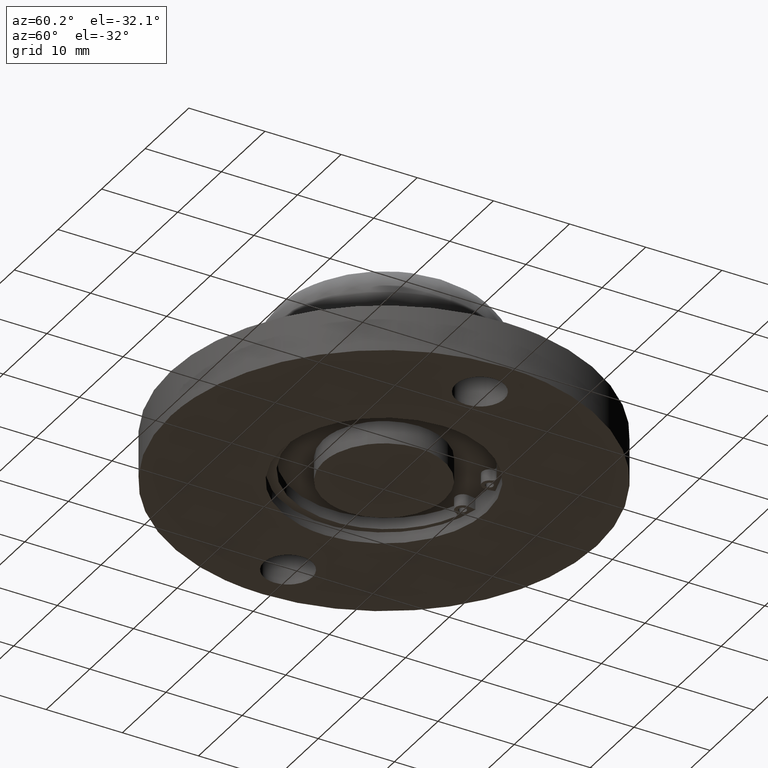
[diagram: clean part render]
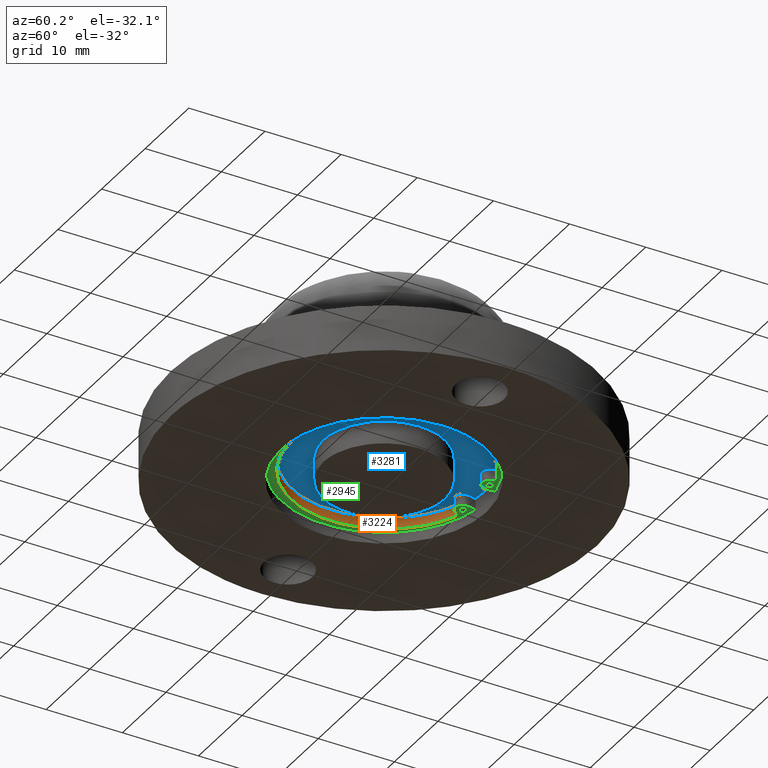
[diagram: same view with three faces highlighted in distinct colors, each labeled with its STEP entity id]
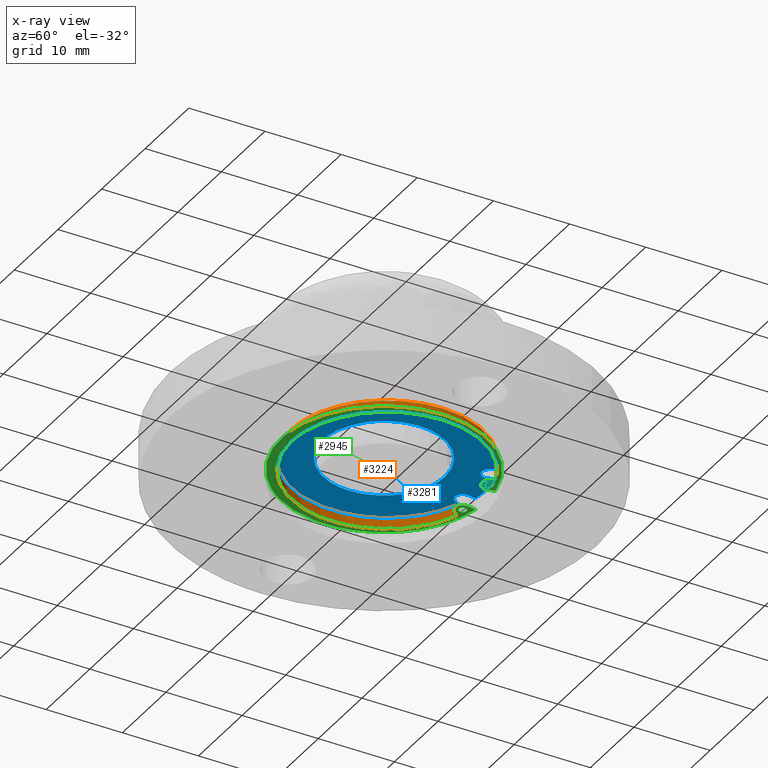
[diagram: x-ray of the same camera — body ghosted, the three highlighted faces saturated]
A machine part, auxiliary view with three faces highlighted in distinct colors.
The next image is the same camera in x-ray (body ghosted, the three faces saturated) — at least one of them is partly hidden behind the body in this view.
Their STEP definitions:

[orange] entity #3224 — the highlighted face is a freeform B-spline surface patch.
#2786=CARTESIAN_POINT('',(4.689849709970910,12.094670140618980,1.500000000000055));
#2787=VERTEX_POINT('',#2786);
#2865=CARTESIAN_POINT('',(-4.689849709971110,12.094670140618961,1.500000000000055));
#2866=VERTEX_POINT('',#2865);
#2877=CARTESIAN_POINT('',(-0.000001174504180,-12.199999999999941,1.500000000000055));
#2878=VERTEX_POINT('',#2877);
#2879=CARTESIAN_POINT('',(-0.000001174504180,-12.199999999999941,1.500000000000055));
#2880=CARTESIAN_POINT('',(-0.769831130901664,-12.200066382789370,1.500000000000054));
#2881=CARTESIAN_POINT('',(-2.309477224875312,-12.058481585410361,1.500000000000057));
#2882=CARTESIAN_POINT('',(-4.410304056692526,-11.465900723191311,1.500000000000054));
#2883=CARTESIAN_POINT('',(-6.113782433442365,-10.659552248596590,1.500000000000056));
#2884=CARTESIAN_POINT('',(-7.503864138048044,-9.760384571580003,1.500000000000061));
#2885=CARTESIAN_POINT('',(-8.915003948674160,-8.582879909579118,1.500000000000031));
#2886=CARTESIAN_POINT('',(-10.106283263915550,-7.207031262737074,1.500000000000108));
#2887=CARTESIAN_POINT('',(-11.025507065604989,-5.749316700279049,1.500000000000073));
#2888=CARTESIAN_POINT('',(-11.772730226937190,-4.221615329414719,1.500000000000006));
#2889=CARTESIAN_POINT('',(-12.383708061991600,-2.291884431644021,1.500000000000130));
#2890=CARTESIAN_POINT('',(-12.632585691095301,-0.237810780772341,1.500000000000033));
#2891=CARTESIAN_POINT('',(-12.570644258138310,1.802642450746085,1.500000000000039));
#2892=CARTESIAN_POINT('',(-12.246845391076731,3.569462797211541,1.500000000000135));
#2893=CARTESIAN_POINT('',(-11.687474584980050,5.176343012699563,1.499999999999876));
#2894=CARTESIAN_POINT('',(-11.033094346997020,6.546971885324954,1.500000000000143));
#2895=CARTESIAN_POINT('',(-10.268615726245461,7.755440459006970,1.500000000000024));
#2896=CARTESIAN_POINT('',(-9.307133951655510,8.931455688946766,1.500000000000064));
#2897=CARTESIAN_POINT('',(-8.059359681540888,10.153536203458620,1.500000000000024));
#2898=CARTESIAN_POINT('',(-6.502547763648369,11.261629303339269,1.500000000000140));
#2899=CARTESIAN_POINT('',(-5.236243022470426,11.875562971045280,1.499999999999962));
#2900=CARTESIAN_POINT('',(-4.689849709971110,12.094670140618961,1.500000000000055));
#2901=B_SPLINE_CURVE_WITH_KNOTS('',3,(#2879,#2880,#2881,#2882,#2883,#2884,#2885,#2886,#2887,#2888,#2889,#2890,#2891,#2892,#2893,#2894,#2895,#2896,#2897,#2898,#2899,#2900),.UNSPECIFIED.,.F.,.U.,(4,1,1,1,1,1,1,1,1,1,1,1,1,1,1,1,1,1,1,4),(0.000000109980625,2.309482121007662,4.619008434218319,6.520980399643438,7.947451992257726,9.577705896684751,12.023082175503410,13.381639433989790,14.740185243116541,17.117637427884208,19.427100131240639,20.921490982901300,23.231009176848129,24.793333936819948,26.016026333946940,27.782138068676652,29.072753031773122,30.567156362808841,33.012528141657732,34.778603336587970),.UNSPECIFIED.);
#2902=EDGE_CURVE('',#2878,#2866,#2901,.T.);
#2904=CARTESIAN_POINT('',(4.689849709970910,12.094670140618980,1.500000000000055));
#2905=CARTESIAN_POINT('',(5.278290923089239,11.858727291612491,1.500000000000056));
#2906=CARTESIAN_POINT('',(6.419432037706250,11.297735557071629,1.500000000000054));
#2907=CARTESIAN_POINT('',(8.134384701867759,10.104829487343450,1.500000000000056));
#2908=CARTESIAN_POINT('',(9.718792766728315,8.536411349627464,1.500000000000048));
#2909=CARTESIAN_POINT('',(11.031742508072909,6.624590823637094,1.500000000000056));
#2910=CARTESIAN_POINT('',(11.994550855675680,4.490889657291374,1.500000000000054));
#2911=CARTESIAN_POINT('',(12.482526859310520,2.478499786773301,1.500000000000057));
#2912=CARTESIAN_POINT('',(12.641472289568620,0.466023805306743,1.500000000000068));
#2913=CARTESIAN_POINT('',(12.541261975286460,-1.166447457802752,1.500000000000010));
#2914=CARTESIAN_POINT('',(12.196668182128221,-2.901217757200872,1.500000000000099));
#2915=CARTESIAN_POINT('',(11.710211890209729,-4.342678557884995,1.500000000000040));
#2916=CARTESIAN_POINT('',(10.967279190061969,-5.872208575040808,1.500000000000057));
#2917=CARTESIAN_POINT('',(9.936325641803132,-7.449912847860045,1.500000000000054));
#2918=CARTESIAN_POINT('',(8.600801038226509,-8.879582135104895,1.500000000000054));
#2919=CARTESIAN_POINT('',(7.063430354417638,-10.080271800886790,1.500000000000064));
#2920=CARTESIAN_POINT('',(5.337723125405720,-11.087667865124800,1.500000000000011));
#2921=CARTESIAN_POINT('',(2.943379256253989,-11.962790442454260,1.500000000000197));
#2922=CARTESIAN_POINT('',(1.041553947468179,-12.200277149801741,1.499999999999815));
#2923=CARTESIAN_POINT('',(-0.000001174504180,-12.199999999999941,1.500000000000055));
#2924=B_SPLINE_CURVE_WITH_KNOTS('',3,(#2904,#2905,#2906,#2907,#2908,#2909,#2910,#2911,#2912,#2913,#2914,#2915,#2916,#2917,#2918,#2919,#2920,#2921,#2922,#2923),.UNSPECIFIED.,.F.,.U.,(4,1,1,1,1,1,1,1,1,1,1,1,1,1,1,1,1,4),(0.000000109810472,1.901941977466578,3.803907809107489,6.249277243776508,8.558798894987675,10.732470604110199,13.245788095567949,14.740186238610660,16.777998262361830,18.136458103494029,20.038449209581842,21.329039794259199,23.231010745853059,25.676392065644460,27.170790606726062,29.072754995384770,31.653999880602228,34.778605685604788),.UNSPECIFIED.);
#2925=EDGE_CURVE('',#2787,#2878,#2924,.T.);
#3113=CARTESIAN_POINT('',(-4.689849709971110,12.094670140618961,3.0));
#3114=VERTEX_POINT('',#3113);
#3125=CARTESIAN_POINT('',(-4.689849709971110,12.094670140618961,1.500000000000055));
#3126=CARTESIAN_POINT('',(-4.689849709971110,12.094670140618961,3.0));
#3127=QUASI_UNIFORM_CURVE('',1,(#3125,#3126),.UNSPECIFIED.,.F.,.U.);
#3128=EDGE_CURVE('',#2866,#3114,#3127,.T.);
#3135=CARTESIAN_POINT('',(4.587617180740580,12.135150983390590,1.462500000000056));
#3136=CARTESIAN_POINT('',(4.587617180740580,12.135150983390590,3.038437499999999));
#3137=CARTESIAN_POINT('',(14.434578042713314,8.285683099048542,1.462500000000055));
#3138=CARTESIAN_POINT('',(14.434578042713314,8.285683099048542,3.038437499999998));
#3139=CARTESIAN_POINT('',(12.353499034480921,-2.080133384533347,1.462500000000056));
#3140=CARTESIAN_POINT('',(12.353499034480921,-2.080133384533347,3.038437499999999));
#3141=CARTESIAN_POINT('',(10.272420026248520,-12.445949868115241,1.462500000000055));
#3142=CARTESIAN_POINT('',(10.272420026248520,-12.445949868115241,3.038437499999998));
#3143=CARTESIAN_POINT('',(-0.297291990445127,-12.196492268580849,1.462500000000056));
#3144=CARTESIAN_POINT('',(-0.297291990445127,-12.196492268580849,3.038437499999999));
#3145=CARTESIAN_POINT('',(-10.867004007138776,-11.947034669046452,1.462500000000055));
#3146=CARTESIAN_POINT('',(-10.867004007138776,-11.947034669046452,3.038437499999998));
#3147=CARTESIAN_POINT('',(-12.456747459232600,-1.494582470335931,1.462500000000056));
#3148=CARTESIAN_POINT('',(-12.456747459232600,-1.494582470335931,3.038437499999999));
#3149=CARTESIAN_POINT('',(-14.046490911326426,8.957869728374590,1.462500000000055));
#3150=CARTESIAN_POINT('',(-14.046490911326426,8.957869728374590,3.038437499999998));
#3151=CARTESIAN_POINT('',(-4.028891001460831,12.338510681753769,1.462500000000056));
#3152=CARTESIAN_POINT('',(-4.028891001460831,12.338510681753769,3.038437499999999));
#3160=(BOUNDED_SURFACE()B_SPLINE_SURFACE(1,2,((#3135,#3137,#3139,#3141,#3143,#3145,#3147,#3149,#3151),(#3136,#3138,#3140,#3142,#3144,#3146,#3148,#3150,#3152)),.UNSPECIFIED.,.F.,.F.,.U.)B_SPLINE_SURFACE_WITH_KNOTS((2,2),(3,2,2,2,3),(0.0,1.0),(0.0,18.344099807016590,36.688199614033188,55.032299421049792,73.376399228066376),.UNSPECIFIED.)GEOMETRIC_REPRESENTATION_ITEM()RATIONAL_B_SPLINE_SURFACE(((1.0,0.766044443118978,1.0,0.766044443118978,1.0,0.766044443118978,1.0,0.766044443118978,1.0),(1.0,0.766044443118978,1.0,0.766044443118978,1.0,0.766044443118978,1.0,0.766044443118978,1.0)))REPRESENTATION_ITEM('')SURFACE());
#3161=CARTESIAN_POINT('',(-0.000001174504180,-12.199999999999941,3.0));
#3162=VERTEX_POINT('',#3161);
#3163=CARTESIAN_POINT('',(-0.000001174504180,-12.199999999999941,3.0));
#3164=CARTESIAN_POINT('',(-0.769831130901664,-12.200066382789380,2.999999999999999));
#3165=CARTESIAN_POINT('',(-2.309477224875312,-12.058481585410370,3.000000000000002));
#3166=CARTESIAN_POINT('',(-4.410304056692526,-11.465900723191300,2.999999999999997));
#3167=CARTESIAN_POINT('',(-6.113782433442365,-10.659552248596590,3.000000000000002));
#3168=CARTESIAN_POINT('',(-7.503864138048044,-9.760384571580003,3.000000000000011));
#3169=CARTESIAN_POINT('',(-8.915003948674160,-8.582879909579118,2.999999999999952));
#3170=CARTESIAN_POINT('',(-10.106283263915550,-7.207031262737074,3.000000000000105));
#3171=CARTESIAN_POINT('',(-11.025507065607490,-5.749316700276279,3.000000000000034));
#3172=CARTESIAN_POINT('',(-11.772730226920970,-4.221615329432728,2.999999999999904));
#3173=CARTESIAN_POINT('',(-12.383708062051820,-2.291884431577175,3.000000000000148));
#3174=CARTESIAN_POINT('',(-12.632585690833981,-0.237810781062407,2.999999999999956));
#3175=CARTESIAN_POINT('',(-12.570644260089070,1.802642452911408,2.999999999999967));
#3176=CARTESIAN_POINT('',(-12.246845383988781,3.569462789344007,3.000000000000159));
#3177=CARTESIAN_POINT('',(-11.687474613389350,5.176343044233549,2.999999999999644));
#3178=CARTESIAN_POINT('',(-11.033094130778100,6.546971645324498,3.000000000000174));
#3179=CARTESIAN_POINT('',(-10.268616501910341,7.755441318495088,2.999999999999938));
#3180=CARTESIAN_POINT('',(-9.307140843348662,8.931465920551641,3.000000000000008));
#3181=CARTESIAN_POINT('',(-8.237569913194806,9.978896703519597,3.000000000000008));
#3182=CARTESIAN_POINT('',(-6.718014066897028,11.129915434525850,2.999999999999957));
#3183=CARTESIAN_POINT('',(-5.467452861541353,11.782939935132250,3.000000000000116));
#3184=CARTESIAN_POINT('',(-4.689849709971110,12.094670140618961,3.0));
#3185=B_SPLINE_CURVE_WITH_KNOTS('',3,(#3163,#3164,#3165,#3166,#3167,#3168,#3169,#3170,#3171,#3172,#3173,#3174,#3175,#3176,#3177,#3178,#3179,#3180,#3181,#3182,#3183,#3184),.UNSPECIFIED.,.F.,.U.,(4,1,1,1,1,1,1,1,1,1,1,1,1,1,1,1,1,1,1,4),(0.000000109980625,2.309482121007662,4.619008434218319,6.520980399643438,7.947451992257726,9.577705896684751,12.023082175503410,13.381639433989790,14.740185243116541,17.117637427884208,19.427100131240639,20.921490982901300,23.231009176848129,24.793333936819948,26.016026333946940,27.782138068676652,29.072753031773122,30.567156362808841,32.265342655914601,34.778603336587970),.UNSPECIFIED.);
#3186=EDGE_CURVE('',#3162,#3114,#3185,.T.);
#3187=ORIENTED_EDGE('',*,*,#3186,.F.);
#3188=CARTESIAN_POINT('',(4.689849709970910,12.094670140618980,3.0));
#3189=VERTEX_POINT('',#3188);
#3190=CARTESIAN_POINT('',(4.689849709970910,12.094670140618980,3.0));
#3191=CARTESIAN_POINT('',(5.278290923089239,11.858727291612491,3.000000000000003));
#3192=CARTESIAN_POINT('',(6.419432037706255,11.297735557071610,2.999999999999996));
#3193=CARTESIAN_POINT('',(8.134384701867740,10.104829487343540,3.000000000000003));
#3194=CARTESIAN_POINT('',(9.718792766728392,8.536411349627130,2.999999999999989));
#3195=CARTESIAN_POINT('',(11.031742508072419,6.624590823639564,2.999999999999999));
#3196=CARTESIAN_POINT('',(11.994550855679440,4.490889657271979,3.000000000000001));
#3197=CARTESIAN_POINT('',(12.482526859297090,2.478499786842737,3.000000000000003));
#3198=CARTESIAN_POINT('',(12.641472289608039,0.466023805102893,3.000000000000024));
#3199=CARTESIAN_POINT('',(12.541261975145311,-1.166447457072205,2.999999999999909));
#3200=CARTESIAN_POINT('',(12.196668182491530,-2.901217759080881,3.000000000000088));
#3201=CARTESIAN_POINT('',(11.710211754533770,-4.342678439225800,2.999999999999968));
#3202=CARTESIAN_POINT('',(10.967288243234689,-5.872217555637834,3.000000000000007));
#3203=CARTESIAN_POINT('',(10.147442543906511,-7.126724360805718,3.0));
#3204=CARTESIAN_POINT('',(9.133014283187936,-8.317618905835165,2.999999999999998));
#3205=CARTESIAN_POINT('',(8.025990372851474,-9.358776329278362,2.999999999999997));
#3206=CARTESIAN_POINT('',(6.480223583849476,-10.474978102105180,3.000000000000021));
#3207=CARTESIAN_POINT('',(4.786846705303810,-11.310230660391349,2.999999999999940));
#3208=CARTESIAN_POINT('',(2.558435170831351,-12.010734622000200,3.000000000000179));
#3209=CARTESIAN_POINT('',(1.041573999641131,-12.200320847135981,2.999999999999454));
#3210=CARTESIAN_POINT('',(-0.000001174504180,-12.199999999999941,3.0));
#3211=B_SPLINE_CURVE_WITH_KNOTS('',3,(#3190,#3191,#3192,#3193,#3194,#3195,#3196,#3197,#3198,#3199,#3200,#3201,#3202,#3203,#3204,#3205,#3206,#3207,#3208,#3209,#3210),.UNSPECIFIED.,.F.,.U.,(4,1,1,1,1,1,1,1,1,1,1,1,1,1,1,1,1,1,4),(0.000000109810472,1.901941977466578,3.803907809107489,6.249277243776508,8.558798894987675,10.732470604110199,13.245788095567949,14.740186238610660,16.777998262361830,18.136458103494029,20.038449209581842,21.329039794259199,23.231010745853059,24.521628120921999,26.016028091078461,27.782139945106358,30.227503238242559,31.653999880602228,34.778605685604788),.UNSPECIFIED.);
#3212=EDGE_CURVE('',#3189,#3162,#3211,.T.);
#3213=ORIENTED_EDGE('',*,*,#3212,.F.);
#3214=CARTESIAN_POINT('',(4.689849709970910,12.094670140618980,1.500000000000055));
#3215=CARTESIAN_POINT('',(4.689849709970910,12.094670140618980,3.0));
#3216=QUASI_UNIFORM_CURVE('',1,(#3214,#3215),.UNSPECIFIED.,.F.,.U.);
#3217=EDGE_CURVE('',#2787,#3189,#3216,.T.);
#3218=ORIENTED_EDGE('',*,*,#3217,.F.);
#3219=ORIENTED_EDGE('',*,*,#2925,.T.);
#3220=ORIENTED_EDGE('',*,*,#2902,.T.);
#3221=ORIENTED_EDGE('',*,*,#3128,.T.);
#3222=EDGE_LOOP('',(#3187,#3213,#3218,#3219,#3220,#3221));
#3223=FACE_OUTER_BOUND('',#3222,.T.);
#3224=ADVANCED_FACE('',(#3223),#3160,.F.);

[blue] entity #3281 — the highlighted face is a freeform B-spline surface patch.
#2524=CARTESIAN_POINT('',(2.270303030611770,13.307731743208400,3.0));
#2525=VERTEX_POINT('',#2524);
#2531=CARTESIAN_POINT('',(-2.270303030611875,13.307731743208400,3.0));
#2532=VERTEX_POINT('',#2531);
#2533=CARTESIAN_POINT('',(-2.270303030611875,13.307731743208400,3.0));
#2534=CARTESIAN_POINT('',(-1.380222260082724,13.459719581695330,3.000000000000006));
#2535=CARTESIAN_POINT('',(0.144605292342719,13.564305038655570,2.999999999999985));
#2536=CARTESIAN_POINT('',(1.661294939139011,13.411649656453241,2.999999999999998));
#2537=CARTESIAN_POINT('',(2.270303030611770,13.307731743208400,3.0));
#2538=B_SPLINE_CURVE_WITH_KNOTS('',3,(#2533,#2534,#2535,#2536,#2537),.UNSPECIFIED.,.F.,.U.,(4,1,4),(1.801747E-009,2.708856556332767,4.562290827817924),.UNSPECIFIED.);
#2539=EDGE_CURVE('',#2532,#2525,#2538,.T.);
#2652=CARTESIAN_POINT('',(5.802994815140657,-5.506836508933661,3.0));
#2653=VERTEX_POINT('',#2652);
#2659=CARTESIAN_POINT('',(-0.000000710805459,-7.999999999999968,3.0));
#2660=VERTEX_POINT('',#2659);
#2661=CARTESIAN_POINT('',(5.802994815140657,-5.506836508933661,3.0));
#2662=CARTESIAN_POINT('',(5.500410006398495,-5.825734732081775,2.999999999999999));
#2663=CARTESIAN_POINT('',(4.817192528553121,-6.436070760265376,3.000000000000003));
#2664=CARTESIAN_POINT('',(3.693996676203206,-7.137109695641137,3.0));
#2665=CARTESIAN_POINT('',(2.628858841686758,-7.578755362418533,3.000000000000007));
#2666=CARTESIAN_POINT('',(1.420223045150366,-7.908458456733588,2.999999999999991));
#2667=CARTESIAN_POINT('',(0.574879581247512,-8.000110768978342,2.999999999999999));
#2668=CARTESIAN_POINT('',(-0.000000710805459,-7.999999999999968,3.0));
#2669=B_SPLINE_CURVE_WITH_KNOTS('',3,(#2661,#2662,#2663,#2664,#2665,#2666,#2667,#2668),.UNSPECIFIED.,.F.,.U.,(4,1,1,1,1,4),(4.038087E-009,1.318823256255359,2.739095580859649,3.956469362352831,4.768053725514660,6.492668920429413),.UNSPECIFIED.);
#2670=EDGE_CURVE('',#2653,#2660,#2669,.T.);
#2672=CARTESIAN_POINT('',(-8.000000000000085,0.0,3.0));
#2673=VERTEX_POINT('',#2672);
#2674=CARTESIAN_POINT('',(-0.000000710805459,-7.999999999999968,3.0));
#2675=CARTESIAN_POINT('',(-0.589053730478152,-8.000094280768062,2.999999999999990));
#2676=CARTESIAN_POINT('',(-1.505301479238261,-7.898332015883881,3.000000000000016));
#2677=CARTESIAN_POINT('',(-2.890845306368788,-7.496519384409095,2.999999999999991));
#2678=CARTESIAN_POINT('',(-4.020434954797488,-6.962305680457513,2.999999999999993));
#2679=CARTESIAN_POINT('',(-5.039861758424315,-6.244246263081077,3.000000000000005));
#2680=CARTESIAN_POINT('',(-5.856586407384439,-5.485568231106895,3.0));
#2681=CARTESIAN_POINT('',(-6.585184669608871,-4.597791437145522,2.999999999999996));
#2682=CARTESIAN_POINT('',(-7.136423580841615,-3.665157266044376,3.000000000000013));
#2683=CARTESIAN_POINT('',(-7.601168259947206,-2.581036835244976,2.999999999999986));
#2684=CARTESIAN_POINT('',(-7.918284014572393,-1.407164966029908,3.000000000000005));
#2685=CARTESIAN_POINT('',(-8.000029491088677,-0.458144161682701,2.999999999999999));
#2686=CARTESIAN_POINT('',(-8.000000000000085,0.0,3.0));
#2687=B_SPLINE_CURVE_WITH_KNOTS('',3,(#2674,#2675,#2676,#2677,#2678,#2679,#2680,#2681,#2682,#2683,#2684,#2685,#2686),.UNSPECIFIED.,.F.,.U.,(4,1,1,1,1,1,1,1,1,1,4),(8.767996E-009,1.767144346406578,2.748910868755175,4.319728656224406,5.497828505066445,6.479573356972637,7.657665101875113,8.933956503673016,9.719364258487410,11.192008494247910,12.566449062376829),.UNSPECIFIED.);
#2688=EDGE_CURVE('',#2660,#2673,#2687,.T.);
#2690=CARTESIAN_POINT('',(-5.802994815140845,5.506836508933677,3.0));
#2691=VERTEX_POINT('',#2690);
#2692=CARTESIAN_POINT('',(-8.000000000000085,0.0,3.0));
#2693=CARTESIAN_POINT('',(-8.000084789174206,0.537788468061008,3.0));
#2694=CARTESIAN_POINT('',(-7.919934473348022,1.328607478230283,3.000000000000004));
#2695=CARTESIAN_POINT('',(-7.631021217820030,2.464212405914469,2.999999999999990));
#2696=CARTESIAN_POINT('',(-7.243401826814894,3.470421746256444,3.000000000000012));
#2697=CARTESIAN_POINT('',(-6.626141633105331,4.543548016630448,2.999999999999996));
#2698=CARTESIAN_POINT('',(-6.086091578937142,5.208545634002422,3.000000000000008));
#2699=CARTESIAN_POINT('',(-5.802994815140845,5.506836508933677,3.0));
#2700=B_SPLINE_CURVE_WITH_KNOTS('',3,(#2692,#2693,#2694,#2695,#2696,#2697,#2698,#2699),.UNSPECIFIED.,.F.,.U.,(4,1,1,1,1,4),(7.123106E-009,1.613348348155855,2.372579270264763,3.511396024642505,4.840046219914253,6.073781376716028),.UNSPECIFIED.);
#2701=EDGE_CURVE('',#2673,#2691,#2700,.T.);
#2735=CARTESIAN_POINT('',(0.000000710805191,7.999999999999968,3.0));
#2736=VERTEX_POINT('',#2735);
#2737=CARTESIAN_POINT('',(-5.802994815140845,5.506836508933677,3.0));
#2738=CARTESIAN_POINT('',(-5.407345121877357,5.923900657298877,2.999999999999996));
#2739=CARTESIAN_POINT('',(-4.603391475962766,6.606091983838425,3.000000000000004));
#2740=CARTESIAN_POINT('',(-3.327370624867881,7.315193709111927,2.999999999999991));
#2741=CARTESIAN_POINT('',(-1.825941542603284,7.850394189414865,3.000000000000010));
#2742=CARTESIAN_POINT('',(-0.710158588588274,8.000226722998788,2.999999999999990));
#2743=CARTESIAN_POINT('',(0.000000710805191,7.999999999999968,3.0));
#2744=B_SPLINE_CURVE_WITH_KNOTS('',3,(#2737,#2738,#2739,#2740,#2741,#2742,#2743),.UNSPECIFIED.,.F.,.U.,(4,1,1,1,4),(4.038570E-009,1.724615198952475,3.144886887959852,4.362261618742826,6.492668920429318),.UNSPECIFIED.);
#2745=EDGE_CURVE('',#2691,#2736,#2744,.T.);
#2747=CARTESIAN_POINT('',(7.999999999999915,0.0,3.0));
#2748=VERTEX_POINT('',#2747);
#2749=CARTESIAN_POINT('',(0.000000710805191,7.999999999999968,3.0));
#2750=CARTESIAN_POINT('',(0.589055522622106,8.000100148445585,2.999999999999997));
#2751=CARTESIAN_POINT('',(1.505300086233532,7.898324205403545,3.000000000000003));
#2752=CARTESIAN_POINT('',(2.764874202378265,7.533024981033868,2.999999999999994));
#2753=CARTESIAN_POINT('',(3.664836090851267,7.134097148317932,3.000000000000007));
#2754=CARTESIAN_POINT('',(4.620342883541731,6.561395786652540,2.999999999999978));
#2755=CARTESIAN_POINT('',(5.594846528427892,5.781536843500526,3.000000000000039));
#2756=CARTESIAN_POINT('',(6.518402323997904,4.710859333588379,2.999999999999919));
#2757=CARTESIAN_POINT('',(7.136417006392021,3.665153295106704,3.000000000000141));
#2758=CARTESIAN_POINT('',(7.549500609414299,2.701485955068433,2.999999999999893));
#2759=CARTESIAN_POINT('',(7.894685373378924,1.538024942756719,3.000000000000084));
#2760=CARTESIAN_POINT('',(8.000113672288798,0.589055036311069,2.999999999999969));
#2761=CARTESIAN_POINT('',(7.999999999999915,0.0,3.0));
#2762=B_SPLINE_CURVE_WITH_KNOTS('',3,(#2749,#2750,#2751,#2752,#2753,#2754,#2755,#2756,#2757,#2758,#2759,#2760,#2761),.UNSPECIFIED.,.F.,.U.,(4,1,1,1,1,1,1,1,1,1,4),(8.767456E-009,1.767144346406091,2.748910868754702,3.927023506440676,4.712431316319320,6.086874608580835,7.657665101875031,8.933956503672963,9.719364258487397,10.799306031342940,12.566449062376879),.UNSPECIFIED.);
#2763=EDGE_CURVE('',#2736,#2748,#2762,.T.);
#2765=CARTESIAN_POINT('',(7.999999999999915,0.0,3.0));
#2766=CARTESIAN_POINT('',(8.000160533380971,-0.664331343321083,3.000000000000004));
#2767=CARTESIAN_POINT('',(7.853352546066190,-1.834705146422577,2.999999999999997));
#2768=CARTESIAN_POINT('',(7.306727812442355,-3.360364981797559,3.000000000000003));
#2769=CARTESIAN_POINT('',(6.626137639286714,-4.543546066854337,2.999999999999989));
#2770=CARTESIAN_POINT('',(6.086091661490534,-5.208545516575335,3.000000000000004));
#2771=CARTESIAN_POINT('',(5.802994815140657,-5.506836508933661,3.0));
#2772=B_SPLINE_CURVE_WITH_KNOTS('',3,(#2765,#2766,#2767,#2768,#2769,#2770,#2771),.UNSPECIFIED.,.F.,.U.,(4,1,1,1,4),(7.122907E-009,1.992963619030748,3.511396024642490,4.840046219914263,6.073781376716013),.UNSPECIFIED.);
#2773=EDGE_CURVE('',#2748,#2653,#2772,.T.);
#2964=CARTESIAN_POINT('',(4.029021675524880,11.787561467407100,3.0));
#2965=VERTEX_POINT('',#2964);
#2966=CARTESIAN_POINT('',(2.814102910323212,11.136531608023009,3.0));
#2967=VERTEX_POINT('',#2966);
#2968=CARTESIAN_POINT('',(4.029021675524880,11.787561467407100,3.0));
#2969=CARTESIAN_POINT('',(3.986895096796020,11.659691946361370,2.999999999999999));
#2970=CARTESIAN_POINT('',(3.861982451755984,11.442527504847581,2.999999999999998));
#2971=CARTESIAN_POINT('',(3.612624585389913,11.240200317275651,3.000000000000006));
#2972=CARTESIAN_POINT('',(3.356832349644538,11.129397635187379,2.999999999999998));
#2973=CARTESIAN_POINT('',(3.096228467712586,11.087437654455069,2.999999999999988));
#2974=CARTESIAN_POINT('',(2.905735471573665,11.111371812516181,3.000000000000006));
#2975=CARTESIAN_POINT('',(2.814102910323212,11.136531608023009,3.0));
#2976=B_SPLINE_CURVE_WITH_KNOTS('',3,(#2968,#2969,#2970,#2971,#2972,#2973,#2974,#2975),.UNSPECIFIED.,.F.,.U.,(4,1,1,1,1,4),(0.000000141108525,0.403863999787267,0.736473239679512,0.950247383468087,1.235345882245169,1.520418713885283),.UNSPECIFIED.);
#2977=EDGE_CURVE('',#2965,#2967,#2976,.T.);
#2979=CARTESIAN_POINT('',(2.101142949769835,12.316173811447699,3.0));
#2980=VERTEX_POINT('',#2979);
#2981=CARTESIAN_POINT('',(2.814102910323212,11.136531608023009,3.0));
#2982=CARTESIAN_POINT('',(2.707167993101804,11.165790702936761,3.000000000000004));
#2983=CARTESIAN_POINT('',(2.525084305608557,11.250231944340820,2.999999999999996));
#2984=CARTESIAN_POINT('',(2.328798514080066,11.426090713328399,3.000000000000009));
#2985=CARTESIAN_POINT('',(2.191157019096401,11.621025766213160,2.999999999999994));
#2986=CARTESIAN_POINT('',(2.072823825513107,11.909164742727651,3.000000000000011));
#2987=CARTESIAN_POINT('',(2.066898005424547,12.161476180512199,2.999999999999989));
#2988=CARTESIAN_POINT('',(2.101142949769835,12.316173811447699,3.0));
#2989=B_SPLINE_CURVE_WITH_KNOTS('',3,(#2981,#2982,#2983,#2984,#2985,#2986,#2987,#2988),.UNSPECIFIED.,.F.,.U.,(4,1,1,1,1,4),(0.000000141108513,0.332589692499855,0.593915875826999,0.783944178455116,1.045282356585241,1.520418788728658),.UNSPECIFIED.);
#2990=EDGE_CURVE('',#2967,#2980,#2989,.T.);
#3012=CARTESIAN_POINT('',(2.270303030611770,13.307731743208400,3.0));
#3013=CARTESIAN_POINT('',(2.101142949769835,12.316173811447699,3.0));
#3014=QUASI_UNIFORM_CURVE('',1,(#3012,#3013),.UNSPECIFIED.,.F.,.U.);
#3015=EDGE_CURVE('',#2525,#2980,#3014,.T.);
#3028=CARTESIAN_POINT('',(-2.101142949769975,12.316173811447641,3.0));
#3029=VERTEX_POINT('',#3028);
#3030=CARTESIAN_POINT('',(-2.101142949769975,12.316173811447641,3.0));
#3031=CARTESIAN_POINT('',(-2.270303030611875,13.307731743208400,3.0));
#3032=QUASI_UNIFORM_CURVE('',1,(#3030,#3031),.UNSPECIFIED.,.F.,.U.);
#3033=EDGE_CURVE('',#3029,#2532,#3032,.T.);
#3063=CARTESIAN_POINT('',(-2.814102838149258,11.136531627812721,3.0));
#3064=VERTEX_POINT('',#3063);
#3065=CARTESIAN_POINT('',(-2.101142949769975,12.316173811447641,3.0));
#3066=CARTESIAN_POINT('',(-2.077316303872145,12.207892734490001,3.0));
#3067=CARTESIAN_POINT('',(-2.068264083784857,12.023469719912359,3.000000000000005));
#3068=CARTESIAN_POINT('',(-2.122942670899744,11.782713509651281,2.999999999999994));
#3069=CARTESIAN_POINT('',(-2.231067048670337,11.543497805484771,3.000000000000005));
#3070=CARTESIAN_POINT('',(-2.446497198894247,11.292795465864740,2.999999999999997));
#3071=CARTESIAN_POINT('',(-2.684224325360540,11.172007621598990,3.000000000000001));
#3072=CARTESIAN_POINT('',(-2.814102838149258,11.136531627812721,3.0));
#3073=B_SPLINE_CURVE_WITH_KNOTS('',3,(#3065,#3066,#3067,#3068,#3069,#3070,#3071,#3072),.UNSPECIFIED.,.F.,.U.,(4,1,1,1,1,4),(0.000000141108959,0.332589676128388,0.546412314057866,0.736473239679616,1.116556224858624,1.520418713885239),.UNSPECIFIED.);
#3074=EDGE_CURVE('',#3029,#3064,#3073,.T.);
#3076=CARTESIAN_POINT('',(-4.029021675525124,11.787561467407119,3.0));
#3077=VERTEX_POINT('',#3076);
#3078=CARTESIAN_POINT('',(-2.814102838149258,11.136531627812721,3.0));
#3079=CARTESIAN_POINT('',(-2.966822871706696,11.094321595482960,3.000000000000005));
#3080=CARTESIAN_POINT('',(-3.219097176958164,11.087240638898320,2.999999999999994));
#3081=CARTESIAN_POINT('',(-3.558205988614815,11.206331649089959,3.000000000000005));
#3082=CARTESIAN_POINT('',(-3.842802182516190,11.415610336374630,3.000000000000007));
#3083=CARTESIAN_POINT('',(-3.981979964140957,11.644618466549970,2.999999999999969));
#3084=CARTESIAN_POINT('',(-4.029021675525124,11.787561467407119,3.0));
#3085=B_SPLINE_CURVE_WITH_KNOTS('',3,(#3078,#3079,#3080,#3081,#3082,#3083,#3084),.UNSPECIFIED.,.F.,.U.,(4,1,1,1,4),(0.000000141108698,0.475138586571530,0.736473275934847,1.069043522456143,1.520418788728693),.UNSPECIFIED.);
#3086=EDGE_CURVE('',#3064,#3077,#3085,.T.);
#3113=CARTESIAN_POINT('',(-4.689849709971110,12.094670140618961,3.0));
#3114=VERTEX_POINT('',#3113);
#3115=CARTESIAN_POINT('',(-4.689849709971110,12.094670140618961,3.0));
#3116=CARTESIAN_POINT('',(-4.618835382338912,12.123279030078990,3.000000000000003));
#3117=CARTESIAN_POINT('',(-4.472110425383539,12.145521881465870,2.999999999999996));
#3118=CARTESIAN_POINT('',(-4.271930752292312,12.087560635849339,3.000000000000002));
#3119=CARTESIAN_POINT('',(-4.115522894275242,11.964920682820059,2.999999999999990));
#3120=CARTESIAN_POINT('',(-4.050309800254634,11.852194324447121,3.000000000000008));
#3121=CARTESIAN_POINT('',(-4.029021675525124,11.787561467407119,3.0));
#3122=B_SPLINE_CURVE_WITH_KNOTS('',3,(#3115,#3116,#3117,#3118,#3119,#3120,#3121),.UNSPECIFIED.,.F.,.U.,(4,1,1,1,4),(-0.000003928598288,0.229647827348831,0.433764449186403,0.612385029221784,0.816513918230845),.UNSPECIFIED.);
#3123=EDGE_CURVE('',#3114,#3077,#3122,.T.);
#3161=CARTESIAN_POINT('',(-0.000001174504180,-12.199999999999941,3.0));
#3162=VERTEX_POINT('',#3161);
#3163=CARTESIAN_POINT('',(-0.000001174504180,-12.199999999999941,3.0));
#3164=CARTESIAN_POINT('',(-0.769831130901664,-12.200066382789380,2.999999999999999));
#3165=CARTESIAN_POINT('',(-2.309477224875312,-12.058481585410370,3.000000000000002));
#3166=CARTESIAN_POINT('',(-4.410304056692526,-11.465900723191300,2.999999999999997));
#3167=CARTESIAN_POINT('',(-6.113782433442365,-10.659552248596590,3.000000000000002));
#3168=CARTESIAN_POINT('',(-7.503864138048044,-9.760384571580003,3.000000000000011));
#3169=CARTESIAN_POINT('',(-8.915003948674160,-8.582879909579118,2.999999999999952));
#3170=CARTESIAN_POINT('',(-10.106283263915550,-7.207031262737074,3.000000000000105));
#3171=CARTESIAN_POINT('',(-11.025507065607490,-5.749316700276279,3.000000000000034));
#3172=CARTESIAN_POINT('',(-11.772730226920970,-4.221615329432728,2.999999999999904));
#3173=CARTESIAN_POINT('',(-12.383708062051820,-2.291884431577175,3.000000000000148));
#3174=CARTESIAN_POINT('',(-12.632585690833981,-0.237810781062407,2.999999999999956));
#3175=CARTESIAN_POINT('',(-12.570644260089070,1.802642452911408,2.999999999999967));
#3176=CARTESIAN_POINT('',(-12.246845383988781,3.569462789344007,3.000000000000159));
#3177=CARTESIAN_POINT('',(-11.687474613389350,5.176343044233549,2.999999999999644));
#3178=CARTESIAN_POINT('',(-11.033094130778100,6.546971645324498,3.000000000000174));
#3179=CARTESIAN_POINT('',(-10.268616501910341,7.755441318495088,2.999999999999938));
#3180=CARTESIAN_POINT('',(-9.307140843348662,8.931465920551641,3.000000000000008));
#3181=CARTESIAN_POINT('',(-8.237569913194806,9.978896703519597,3.000000000000008));
#3182=CARTESIAN_POINT('',(-6.718014066897028,11.129915434525850,2.999999999999957));
#3183=CARTESIAN_POINT('',(-5.467452861541353,11.782939935132250,3.000000000000116));
#3184=CARTESIAN_POINT('',(-4.689849709971110,12.094670140618961,3.0));
#3185=B_SPLINE_CURVE_WITH_KNOTS('',3,(#3163,#3164,#3165,#3166,#3167,#3168,#3169,#3170,#3171,#3172,#3173,#3174,#3175,#3176,#3177,#3178,#3179,#3180,#3181,#3182,#3183,#3184),.UNSPECIFIED.,.F.,.U.,(4,1,1,1,1,1,1,1,1,1,1,1,1,1,1,1,1,1,1,4),(0.000000109980625,2.309482121007662,4.619008434218319,6.520980399643438,7.947451992257726,9.577705896684751,12.023082175503410,13.381639433989790,14.740185243116541,17.117637427884208,19.427100131240639,20.921490982901300,23.231009176848129,24.793333936819948,26.016026333946940,27.782138068676652,29.072753031773122,30.567156362808841,32.265342655914601,34.778603336587970),.UNSPECIFIED.);
#3186=EDGE_CURVE('',#3162,#3114,#3185,.T.);
#3188=CARTESIAN_POINT('',(4.689849709970910,12.094670140618980,3.0));
#3189=VERTEX_POINT('',#3188);
#3190=CARTESIAN_POINT('',(4.689849709970910,12.094670140618980,3.0));
#3191=CARTESIAN_POINT('',(5.278290923089239,11.858727291612491,3.000000000000003));
#3192=CARTESIAN_POINT('',(6.419432037706255,11.297735557071610,2.999999999999996));
#3193=CARTESIAN_POINT('',(8.134384701867740,10.104829487343540,3.000000000000003));
#3194=CARTESIAN_POINT('',(9.718792766728392,8.536411349627130,2.999999999999989));
#3195=CARTESIAN_POINT('',(11.031742508072419,6.624590823639564,2.999999999999999));
#3196=CARTESIAN_POINT('',(11.994550855679440,4.490889657271979,3.000000000000001));
#3197=CARTESIAN_POINT('',(12.482526859297090,2.478499786842737,3.000000000000003));
#3198=CARTESIAN_POINT('',(12.641472289608039,0.466023805102893,3.000000000000024));
#3199=CARTESIAN_POINT('',(12.541261975145311,-1.166447457072205,2.999999999999909));
#3200=CARTESIAN_POINT('',(12.196668182491530,-2.901217759080881,3.000000000000088));
#3201=CARTESIAN_POINT('',(11.710211754533770,-4.342678439225800,2.999999999999968));
#3202=CARTESIAN_POINT('',(10.967288243234689,-5.872217555637834,3.000000000000007));
#3203=CARTESIAN_POINT('',(10.147442543906511,-7.126724360805718,3.0));
#3204=CARTESIAN_POINT('',(9.133014283187936,-8.317618905835165,2.999999999999998));
#3205=CARTESIAN_POINT('',(8.025990372851474,-9.358776329278362,2.999999999999997));
#3206=CARTESIAN_POINT('',(6.480223583849476,-10.474978102105180,3.000000000000021));
#3207=CARTESIAN_POINT('',(4.786846705303810,-11.310230660391349,2.999999999999940));
#3208=CARTESIAN_POINT('',(2.558435170831351,-12.010734622000200,3.000000000000179));
#3209=CARTESIAN_POINT('',(1.041573999641131,-12.200320847135981,2.999999999999454));
#3210=CARTESIAN_POINT('',(-0.000001174504180,-12.199999999999941,3.0));
#3211=B_SPLINE_CURVE_WITH_KNOTS('',3,(#3190,#3191,#3192,#3193,#3194,#3195,#3196,#3197,#3198,#3199,#3200,#3201,#3202,#3203,#3204,#3205,#3206,#3207,#3208,#3209,#3210),.UNSPECIFIED.,.F.,.U.,(4,1,1,1,1,1,1,1,1,1,1,1,1,1,1,1,1,1,4),(0.000000109810472,1.901941977466578,3.803907809107489,6.249277243776508,8.558798894987675,10.732470604110199,13.245788095567949,14.740186238610660,16.777998262361830,18.136458103494029,20.038449209581842,21.329039794259199,23.231010745853059,24.521628120921999,26.016028091078461,27.782139945106358,30.227503238242559,31.653999880602228,34.778605685604788),.UNSPECIFIED.);
#3212=EDGE_CURVE('',#3189,#3162,#3211,.T.);
#3239=CARTESIAN_POINT('',(4.029021675524880,11.787561467407100,3.0));
#3240=CARTESIAN_POINT('',(4.052940516848464,11.860291585230430,3.0));
#3241=CARTESIAN_POINT('',(4.130544179746804,11.986782965685830,3.000000000000001));
#3242=CARTESIAN_POINT('',(4.303916420843684,12.102425764790571,2.999999999999998));
#3243=CARTESIAN_POINT('',(4.498507017641606,12.142906098244611,3.000000000000004));
#3244=CARTESIAN_POINT('',(4.626719845609131,12.120071167027490,3.0));
#3245=CARTESIAN_POINT('',(4.689849709970910,12.094670140618980,3.0));
#3246=B_SPLINE_CURVE_WITH_KNOTS('',3,(#3239,#3240,#3241,#3242,#3243,#3244,#3245),.UNSPECIFIED.,.F.,.U.,(4,1,1,1,4),(-0.000003928598109,0.229647827348907,0.433764449186451,0.612385029221824,0.816513918230880),.UNSPECIFIED.);
#3247=EDGE_CURVE('',#2965,#3189,#3246,.T.);
#3255=CARTESIAN_POINT('',(-13.858463680388461,-13.483714399277639,3.0));
#3256=CARTESIAN_POINT('',(13.858426050902020,-13.483714399277639,3.0));
#3257=CARTESIAN_POINT('',(-13.858463680388461,14.783704059361970,3.0));
#3258=CARTESIAN_POINT('',(13.858426050902020,14.783704059361970,3.0));
#3259=B_SPLINE_SURFACE_WITH_KNOTS('',1,1,((#3255,#3257),(#3256,#3258)),.UNSPECIFIED.,.F.,.F.,.U.,(2,2),(2,2),(0.0,27.716889731290479),(0.0,28.267418458639611),.UNSPECIFIED.);
#3260=ORIENTED_EDGE('',*,*,#3033,.T.);
#3261=ORIENTED_EDGE('',*,*,#2539,.T.);
#3262=ORIENTED_EDGE('',*,*,#3015,.T.);
#3263=ORIENTED_EDGE('',*,*,#2990,.F.);
#3264=ORIENTED_EDGE('',*,*,#2977,.F.);
#3265=ORIENTED_EDGE('',*,*,#3247,.T.);
#3266=ORIENTED_EDGE('',*,*,#3212,.T.);
#3267=ORIENTED_EDGE('',*,*,#3186,.T.);
#3268=ORIENTED_EDGE('',*,*,#3123,.T.);
#3269=ORIENTED_EDGE('',*,*,#3086,.F.);
#3270=ORIENTED_EDGE('',*,*,#3074,.F.);
#3271=EDGE_LOOP('',(#3260,#3261,#3262,#3263,#3264,#3265,#3266,#3267,#3268,#3269,#3270));
#3272=FACE_OUTER_BOUND('',#3271,.T.);
#3273=ORIENTED_EDGE('',*,*,#2688,.F.);
#3274=ORIENTED_EDGE('',*,*,#2670,.F.);
#3275=ORIENTED_EDGE('',*,*,#2773,.F.);
#3276=ORIENTED_EDGE('',*,*,#2763,.F.);
#3277=ORIENTED_EDGE('',*,*,#2745,.F.);
#3278=ORIENTED_EDGE('',*,*,#2701,.F.);
#3279=EDGE_LOOP('',(#3273,#3274,#3275,#3276,#3277,#3278));
#3280=FACE_BOUND('',#3279,.T.);
#3281=ADVANCED_FACE('',(#3272,#3280),#3259,.F.);

[green] entity #2945 — the highlighted face is a freeform B-spline surface patch.
#2241=CARTESIAN_POINT('',(2.722137768902407,12.452215655510511,1.500000000000055));
#2242=VERTEX_POINT('',#2241);
#2248=CARTESIAN_POINT('',(3.078764214129789,12.601761372921040,1.500000000000055));
#2249=VERTEX_POINT('',#2248);
#2250=CARTESIAN_POINT('',(2.722137768902407,12.452215655510511,1.500000000000055));
#2251=CARTESIAN_POINT('',(2.774249977008201,12.505421505308250,1.500000000000056));
#2252=CARTESIAN_POINT('',(2.888524818853595,12.578503942384470,1.500000000000055));
#2253=CARTESIAN_POINT('',(3.020857522524926,12.601802445376990,1.500000000000056));
#2254=CARTESIAN_POINT('',(3.078764214129789,12.601761372921040,1.500000000000055));
#2255=B_SPLINE_CURVE_WITH_KNOTS('',3,(#2250,#2251,#2252,#2253,#2254),.UNSPECIFIED.,.F.,.U.,(4,1,4),(0.000000045207384,0.223371099848168,0.397104492770973),.UNSPECIFIED.);
#2256=EDGE_CURVE('',#2242,#2249,#2255,.T.);
#2258=CARTESIAN_POINT('',(3.578762863744187,12.101761372922820,1.500000000000055));
#2259=VERTEX_POINT('',#2258);
#2260=CARTESIAN_POINT('',(3.078764214129789,12.601761372921040,1.500000000000055));
#2261=CARTESIAN_POINT('',(3.152415342333071,12.601865471850330,1.500000000000052));
#2262=CARTESIAN_POINT('',(3.291381861096038,12.570475307681431,1.500000000000061));
#2263=CARTESIAN_POINT('',(3.458926883522719,12.446306666323521,1.500000000000053));
#2264=CARTESIAN_POINT('',(3.557468300696662,12.281739290998960,1.500000000000060));
#2265=CARTESIAN_POINT('',(3.578795339807012,12.159031738632841,1.500000000000053));
#2266=CARTESIAN_POINT('',(3.578762863744187,12.101761372922820,1.500000000000055));
#2267=B_SPLINE_CURVE_WITH_KNOTS('',3,(#2260,#2261,#2262,#2263,#2264,#2265,#2266),.UNSPECIFIED.,.F.,.U.,(4,1,1,1,4),(0.000000119736716,0.220915451757991,0.417282150027502,0.613653481792256,0.785476180471632),.UNSPECIFIED.);
#2268=EDGE_CURVE('',#2249,#2259,#2267,.T.);
#2270=CARTESIAN_POINT('',(3.435387958585883,11.751307090335130,1.500000000000055));
#2271=VERTEX_POINT('',#2270);
#2272=CARTESIAN_POINT('',(3.578762863744187,12.101761372922820,1.500000000000055));
#2273=CARTESIAN_POINT('',(3.578804157275215,12.045126659568391,1.500000000000055));
#2274=CARTESIAN_POINT('',(3.556521087084164,11.915702528659811,1.500000000000055));
#2275=CARTESIAN_POINT('',(3.486522957717738,11.803178025602540,1.500000000000056));
#2276=CARTESIAN_POINT('',(3.435387958585883,11.751307090335130,1.500000000000055));
#2277=B_SPLINE_CURVE_WITH_KNOTS('',3,(#2272,#2273,#2274,#2275,#2276),.UNSPECIFIED.,.F.,.U.,(4,1,4),(0.000000040295690,0.169913630573479,0.388373557718587),.UNSPECIFIED.);
#2278=EDGE_CURVE('',#2259,#2271,#2277,.T.);
#2308=CARTESIAN_POINT('',(3.078761513358499,11.601761372924610,1.500000000000055));
#2309=VERTEX_POINT('',#2308);
#2310=CARTESIAN_POINT('',(3.435387958585883,11.751307090335130,1.500000000000055));
#2311=CARTESIAN_POINT('',(3.383276139484543,11.698098478906021,1.500000000000053));
#2312=CARTESIAN_POINT('',(3.269000089564544,11.625024498050831,1.500000000000061));
#2313=CARTESIAN_POINT('',(3.136670066594230,11.601716776088161,1.500000000000054));
#2314=CARTESIAN_POINT('',(3.078761513358499,11.601761372924610,1.500000000000055));
#2315=B_SPLINE_CURVE_WITH_KNOTS('',3,(#2310,#2311,#2312,#2313,#2314),.UNSPECIFIED.,.F.,.U.,(4,1,4),(0.000000045207418,0.223371099848174,0.397104492770974),.UNSPECIFIED.);
#2316=EDGE_CURVE('',#2271,#2309,#2315,.T.);
#2318=CARTESIAN_POINT('',(2.578762863744104,12.101761372922820,1.500000000000055));
#2319=VERTEX_POINT('',#2318);
#2320=CARTESIAN_POINT('',(3.078761513358499,11.601761372924610,1.500000000000055));
#2321=CARTESIAN_POINT('',(3.005110245835275,11.601657087263410,1.500000000000055));
#2322=CARTESIAN_POINT('',(2.866144044151465,11.633047427547959,1.500000000000058));
#2323=CARTESIAN_POINT('',(2.698598873035842,11.757216587272699,1.500000000000055));
#2324=CARTESIAN_POINT('',(2.600057218289814,11.921782612979801,1.500000000000055));
#2325=CARTESIAN_POINT('',(2.578730373805577,12.044492272144710,1.500000000000056));
#2326=CARTESIAN_POINT('',(2.578762863744104,12.101761372922820,1.500000000000055));
#2327=B_SPLINE_CURVE_WITH_KNOTS('',3,(#2320,#2321,#2322,#2323,#2324,#2325,#2326),.UNSPECIFIED.,.F.,.U.,(4,1,1,1,4),(0.000000119736881,0.220915451758067,0.417282150027529,0.613653481792265,0.785476180471628),.UNSPECIFIED.);
#2328=EDGE_CURVE('',#2309,#2319,#2327,.T.);
#2330=CARTESIAN_POINT('',(2.578762863744104,12.101761372922820,1.500000000000055));
#2331=CARTESIAN_POINT('',(2.578649548295534,12.174597843183960,1.500000000000054));
#2332=CARTESIAN_POINT('',(2.607588431147488,12.303923576518351,1.500000000000058));
#2333=CARTESIAN_POINT('',(2.682413606786092,12.411846178024740,1.500000000000052));
#2334=CARTESIAN_POINT('',(2.722137768902407,12.452215655510511,1.500000000000055));
#2335=B_SPLINE_CURVE_WITH_KNOTS('',3,(#2330,#2331,#2332,#2333,#2334),.UNSPECIFIED.,.F.,.U.,(4,1,4),(0.000000040295621,0.218459967518911,0.388373557718586),.UNSPECIFIED.);
#2336=EDGE_CURVE('',#2319,#2242,#2335,.T.);
#2365=CARTESIAN_POINT('',(-3.435387958585999,12.452215655510511,1.500000000000055));
#2366=VERTEX_POINT('',#2365);
#2372=CARTESIAN_POINT('',(-3.078761513358617,12.601761372921040,1.500000000000055));
#2373=VERTEX_POINT('',#2372);
#2374=CARTESIAN_POINT('',(-3.435387958585999,12.452215655510511,1.500000000000055));
#2375=CARTESIAN_POINT('',(-3.394826756930201,12.493548882660971,1.500000000000056));
#2376=CARTESIAN_POINT('',(-3.285461503733669,12.571600477332851,1.500000000000054));
#2377=CARTESIAN_POINT('',(-3.153235405746683,12.601885750049121,1.500000000000056));
#2378=CARTESIAN_POINT('',(-3.078761513358617,12.601761372921040,1.500000000000055));
#2379=B_SPLINE_CURVE_WITH_KNOTS('',3,(#2374,#2375,#2376,#2377,#2378),.UNSPECIFIED.,.F.,.U.,(4,1,4),(0.000000045207360,0.173733438046691,0.397104492770973),.UNSPECIFIED.);
#2380=EDGE_CURVE('',#2366,#2373,#2379,.T.);
#2382=CARTESIAN_POINT('',(-2.578762863744220,12.101761372922820,1.500000000000055));
#2383=VERTEX_POINT('',#2382);
#2384=CARTESIAN_POINT('',(-3.078761513358617,12.601761372921040,1.500000000000055));
#2385=CARTESIAN_POINT('',(-3.005107755859781,12.601865486478831,1.500000000000054));
#2386=CARTESIAN_POINT('',(-2.866145765376994,12.570475209901639,1.500000000000060));
#2387=CARTESIAN_POINT('',(-2.698598174424232,12.446306546286991,1.500000000000054));
#2388=CARTESIAN_POINT('',(-2.600057551849457,12.281739268574711,1.500000000000054));
#2389=CARTESIAN_POINT('',(-2.578730376229462,12.159031773407280,1.500000000000056));
#2390=CARTESIAN_POINT('',(-2.578762863744220,12.101761372922820,1.500000000000055));
#2391=B_SPLINE_CURVE_WITH_KNOTS('',3,(#2384,#2385,#2386,#2387,#2388,#2389,#2390),.UNSPECIFIED.,.F.,.U.,(4,1,1,1,4),(0.000000119736670,0.220915451757951,0.417282150027443,0.613653481792246,0.785476180471634),.UNSPECIFIED.);
#2392=EDGE_CURVE('',#2373,#2383,#2391,.T.);
#2394=CARTESIAN_POINT('',(-2.722137768902523,11.751307090335130,1.500000000000055));
#2395=VERTEX_POINT('',#2394);
#2396=CARTESIAN_POINT('',(-2.578762863744220,12.101761372922820,1.500000000000055));
#2397=CARTESIAN_POINT('',(-2.578733359441765,12.045127528351710,1.500000000000056));
#2398=CARTESIAN_POINT('',(-2.600985898546697,11.915700659980329,1.500000000000056));
#2399=CARTESIAN_POINT('',(-2.671010463605793,11.803178472104801,1.500000000000055));
#2400=CARTESIAN_POINT('',(-2.722137768902523,11.751307090335130,1.500000000000055));
#2401=B_SPLINE_CURVE_WITH_KNOTS('',3,(#2396,#2397,#2398,#2399,#2400),.UNSPECIFIED.,.F.,.U.,(4,1,4),(0.000000040295643,0.169913630573465,0.388373557718586),.UNSPECIFIED.);
#2402=EDGE_CURVE('',#2383,#2395,#2401,.T.);
#2432=CARTESIAN_POINT('',(-3.078764214129908,11.601761372924610,1.500000000000055));
#2433=VERTEX_POINT('',#2432);
#2434=CARTESIAN_POINT('',(-2.722137768902523,11.751307090335130,1.500000000000055));
#2435=CARTESIAN_POINT('',(-2.762699102116523,11.709972452253210,1.500000000000057));
#2436=CARTESIAN_POINT('',(-2.872064191788603,11.631923543916271,1.500000000000052));
#2437=CARTESIAN_POINT('',(-3.004290320487205,11.601636476099250,1.500000000000057));
#2438=CARTESIAN_POINT('',(-3.078764214129908,11.601761372924610,1.500000000000055));
#2439=B_SPLINE_CURVE_WITH_KNOTS('',3,(#2434,#2435,#2436,#2437,#2438),.UNSPECIFIED.,.F.,.U.,(4,1,4),(0.000000045207417,0.173733438046715,0.397104492770976),.UNSPECIFIED.);
#2440=EDGE_CURVE('',#2395,#2433,#2439,.T.);
#2442=CARTESIAN_POINT('',(-3.578762863744301,12.101761372922820,1.500000000000055));
#2443=VERTEX_POINT('',#2442);
#2444=CARTESIAN_POINT('',(-3.078764214129908,11.601761372924610,1.500000000000055));
#2445=CARTESIAN_POINT('',(-3.152415879236950,11.601656706552690,1.500000000000057));
#2446=CARTESIAN_POINT('',(-3.291381589338082,11.633046386831211,1.500000000000054));
#2447=CARTESIAN_POINT('',(-3.458926694736181,11.757218130210850,1.500000000000058));
#2448=CARTESIAN_POINT('',(-3.557468676940402,11.921780453921990,1.500000000000054));
#2449=CARTESIAN_POINT('',(-3.578794831942873,12.044492886310071,1.500000000000053));
#2450=CARTESIAN_POINT('',(-3.578762863744301,12.101761372922820,1.500000000000055));
#2451=B_SPLINE_CURVE_WITH_KNOTS('',3,(#2444,#2445,#2446,#2447,#2448,#2449,#2450),.UNSPECIFIED.,.F.,.U.,(4,1,1,1,4),(0.000000119736476,0.220915451757821,0.417282150027398,0.613653481792238,0.785476180471628),.UNSPECIFIED.);
#2452=EDGE_CURVE('',#2433,#2443,#2451,.T.);
#2454=CARTESIAN_POINT('',(-3.578762863744301,12.101761372922820,1.500000000000055));
#2455=CARTESIAN_POINT('',(-3.578800270676347,12.158394942405810,1.500000000000054));
#2456=CARTESIAN_POINT('',(-3.556527344292177,12.287820601779650,1.500000000000057));
#2457=CARTESIAN_POINT('',(-3.486519816284100,12.400344683109100,1.500000000000053));
#2458=CARTESIAN_POINT('',(-3.435387958585999,12.452215655510511,1.500000000000055));
#2459=B_SPLINE_CURVE_WITH_KNOTS('',3,(#2454,#2455,#2456,#2457,#2458),.UNSPECIFIED.,.F.,.U.,(4,1,4),(0.000000040295697,0.169913630573505,0.388373557718586),.UNSPECIFIED.);
#2460=EDGE_CURVE('',#2443,#2366,#2459,.T.);
#2486=CARTESIAN_POINT('',(-10.160476529553710,-8.889022257390849,1.500000000001712));
#2487=VERTEX_POINT('',#2486);
#2488=CARTESIAN_POINT('',(-11.292817317313110,-7.397450712089616,1.500000000000055));
#2489=VERTEX_POINT('',#2488);
#2490=CARTESIAN_POINT('',(-10.160476529553710,-8.889022257390849,1.500000000001712));
#2491=CARTESIAN_POINT('',(-10.571845012001869,-8.418844196783669,1.500000000001166));
#2492=CARTESIAN_POINT('',(-10.950500823151851,-7.920051007073101,1.500000000000609));
#2493=CARTESIAN_POINT('',(-11.292817317313110,-7.397450712089616,1.500000000000055));
#2494=B_SPLINE_CURVE_WITH_KNOTS('',3,(#2490,#2491,#2492,#2493),.UNSPECIFIED.,.F.,.U.,(4,4),(4.013263E-010,1.874204229280720),.UNSPECIFIED.);
#2495=EDGE_CURVE('',#2487,#2489,#2494,.T.);
#2505=CARTESIAN_POINT('',(10.160476489869920,8.889022302750707,1.500000000003378));
#2506=VERTEX_POINT('',#2505);
#2512=CARTESIAN_POINT('',(2.270303030611770,13.307731743208400,1.500000000000055));
#2513=VERTEX_POINT('',#2512);
#2514=CARTESIAN_POINT('',(2.270303030611770,13.307731743208400,1.500000000000055));
#2515=CARTESIAN_POINT('',(3.382992858591644,13.118246675167970,1.500000000000494));
#2516=CARTESIAN_POINT('',(4.957833720520442,12.640237597369840,1.500000000001135));
#2517=CARTESIAN_POINT('',(6.796486212090542,11.692629348577290,1.500000000001895));
#2518=CARTESIAN_POINT('',(8.425571718837464,10.625652595319361,1.500000000002608));
#2519=CARTESIAN_POINT('',(9.496521072973117,9.648285011936721,1.500000000003063));
#2520=CARTESIAN_POINT('',(10.160476489869920,8.889022302750707,1.500000000003378));
#2521=B_SPLINE_CURVE_WITH_KNOTS('',3,(#2514,#2515,#2516,#2517,#2518,#2519,#2520),.UNSPECIFIED.,.F.,.U.,(4,1,1,1,4),(8.111524E-009,3.386011478712192,4.898894855946686,6.195669876827937,9.221463157991268),.UNSPECIFIED.);
#2522=EDGE_CURVE('',#2513,#2506,#2521,.T.);
#2541=CARTESIAN_POINT('',(-2.270303030611875,13.307731743208400,1.500000000000055));
#2542=VERTEX_POINT('',#2541);
#2548=CARTESIAN_POINT('',(-11.292817317313110,-7.397450712089616,1.500000000000055));
#2549=CARTESIAN_POINT('',(-11.827449882591219,-6.581622741424312,1.500000000000063));
#2550=CARTESIAN_POINT('',(-12.607119438492189,-5.051896147151219,1.500000000000044));
#2551=CARTESIAN_POINT('',(-13.326623331543120,-2.567630990108919,1.500000000000058));
#2552=CARTESIAN_POINT('',(-13.551518738305020,-0.409404358773680,1.500000000000047));
#2553=CARTESIAN_POINT('',(-13.430920590531450,1.786157152098226,1.500000000000054));
#2554=CARTESIAN_POINT('',(-13.045257619348099,3.669966018703636,1.500000000000057));
#2555=CARTESIAN_POINT('',(-12.345424118580100,5.570006860207661,1.500000000000096));
#2556=CARTESIAN_POINT('',(-11.322028757199250,7.478588782782156,1.500000000000031));
#2557=CARTESIAN_POINT('',(-9.936888712597249,9.239954267865125,1.500000000000080));
#2558=CARTESIAN_POINT('',(-8.297285778585785,10.707726599281679,1.500000000000017));
#2559=CARTESIAN_POINT('',(-6.785396292410465,11.713439689554971,1.500000000000082));
#2560=CARTESIAN_POINT('',(-4.814881561476388,12.688022129345789,1.500000000000098));
#2561=CARTESIAN_POINT('',(-3.300533835696035,13.132191038976631,1.499999999999964));
#2562=CARTESIAN_POINT('',(-2.270303030611875,13.307731743208400,1.500000000000055));
#2563=B_SPLINE_CURVE_WITH_KNOTS('',3,(#2548,#2549,#2550,#2551,#2552,#2553,#2554,#2555,#2556,#2557,#2558,#2559,#2560,#2561,#2562),.UNSPECIFIED.,.F.,.U.,(4,1,1,1,1,1,1,1,1,1,1,1,4),(0.000000055255338,2.926168004386636,5.120803849078609,7.733478074087621,9.405576801209836,11.704734745046800,13.481301306224850,15.466919396450200,18.184105498887170,20.169730338583939,22.050850844726678,23.618458720958198,26.753631469580721),.UNSPECIFIED.);
#2564=EDGE_CURVE('',#2489,#2542,#2563,.T.);
#2587=CARTESIAN_POINT('',(11.292820316394531,-7.397446133742709,1.500000000000055));
#2588=VERTEX_POINT('',#2587);
#2589=CARTESIAN_POINT('',(11.292820316394531,-7.397446133742709,1.500000000000055));
#2590=CARTESIAN_POINT('',(10.955568068820041,-7.912332176453506,1.500000000000134));
#2591=CARTESIAN_POINT('',(10.171261534810650,-8.947626804148895,1.500000000000301));
#2592=CARTESIAN_POINT('',(8.991642703245660,-10.111110196599309,1.500000000000502));
#2593=CARTESIAN_POINT('',(7.714340601412892,-11.109228033242999,1.500000000000705));
#2594=CARTESIAN_POINT('',(6.475816050599993,-11.883899930325990,1.500000000000875));
#2595=CARTESIAN_POINT('',(4.917321074635334,-12.611070727183909,1.500000000001053));
#2596=CARTESIAN_POINT('',(3.278693495867318,-13.137025204635590,1.500000000001224));
#2597=CARTESIAN_POINT('',(1.712974178146161,-13.417710149101859,1.500000000001373));
#2598=CARTESIAN_POINT('',(0.160307551937493,-13.525658595108601,1.500000000001486));
#2599=CARTESIAN_POINT('',(-1.169673937827046,-13.474344893498820,1.500000000001573));
#2600=CARTESIAN_POINT('',(-2.709997458847095,-13.252639182466730,1.500000000001666));
#2601=CARTESIAN_POINT('',(-4.062511466504597,-12.905938420183160,1.500000000001669));
#2602=CARTESIAN_POINT('',(-5.697711110250348,-12.279012634378470,1.500000000001783));
#2603=CARTESIAN_POINT('',(-7.272969836625207,-11.434561302396270,1.500000000001776));
#2604=CARTESIAN_POINT('',(-8.858190030284273,-10.246146351377391,1.500000000001771));
#2605=CARTESIAN_POINT('',(-9.755221566838490,-9.352278250149810,1.500000000001728));
#2606=CARTESIAN_POINT('',(-10.160476529553710,-8.889022257390849,1.500000000001712));
#2607=B_SPLINE_CURVE_WITH_KNOTS('',3,(#2589,#2590,#2591,#2592,#2593,#2594,#2595,#2596,#2597,#2598,#2599,#2600,#2601,#2602,#2603,#2604,#2605,#2606),.UNSPECIFIED.,.F.,.U.,(4,1,1,1,1,1,1,1,1,1,1,1,1,1,1,4),(0.000000054206701,1.846519346931117,3.887400937663855,4.956445675517422,6.705792154467446,8.260756576365822,10.107278760918760,11.856644262283160,13.022803908346511,14.772167458708690,15.841210825897790,17.687730515636641,18.951144064784931,21.089233606032529,23.032951781548238,24.879447625452570),.UNSPECIFIED.);
#2608=EDGE_CURVE('',#2588,#2487,#2607,.T.);
#2610=CARTESIAN_POINT('',(10.160476489869920,8.889022302750707,1.500000000003378));
#2611=CARTESIAN_POINT('',(10.746798184741190,8.219032809781419,1.500000000003318));
#2612=CARTESIAN_POINT('',(11.492865468424490,7.173255112518445,1.500000000003195));
#2613=CARTESIAN_POINT('',(12.364894774617410,5.489112027347237,1.500000000002962));
#2614=CARTESIAN_POINT('',(13.012223075102380,3.801309726015619,1.500000000002687));
#2615=CARTESIAN_POINT('',(13.401968511905810,1.962875562209747,1.500000000002367));
#2616=CARTESIAN_POINT('',(13.531918135785480,0.093056355170633,1.500000000001955));
#2617=CARTESIAN_POINT('',(13.436325555979151,-1.826642532208529,1.500000000001561));
#2618=CARTESIAN_POINT('',(12.997037407800050,-3.866409555596729,1.500000000001023));
#2619=CARTESIAN_POINT('',(12.235289468151000,-5.804337177309317,1.500000000000570));
#2620=CARTESIAN_POINT('',(11.630582041867930,-6.881867939478537,1.500000000000159));
#2621=CARTESIAN_POINT('',(11.292820316394531,-7.397446133742709,1.500000000000055));
#2622=B_SPLINE_CURVE_WITH_KNOTS('',3,(#2610,#2611,#2612,#2613,#2614,#2615,#2616,#2617,#2618,#2619,#2620,#2621),.UNSPECIFIED.,.F.,.U.,(4,1,1,1,1,1,1,1,1,4),(0.000000028145742,2.670904994986710,3.835150781005034,5.684250858033749,8.081230065902101,9.450896082370424,11.299996306323520,13.833944811191101,15.683036500359091,17.532125779519980),.UNSPECIFIED.);
#2623=EDGE_CURVE('',#2506,#2588,#2622,.T.);
#2779=CARTESIAN_POINT('',(-14.847078237376460,14.646756246436270,1.500000000000000));
#2780=CARTESIAN_POINT('',(14.846491886227470,14.646756246436270,1.500000000000000));
#2781=CARTESIAN_POINT('',(-14.847078237376460,-14.838591881190080,1.500000000000000));
#2782=CARTESIAN_POINT('',(14.846491886227470,-14.838591881190080,1.500000000000000));
#2783=B_SPLINE_SURFACE_WITH_KNOTS('',1,1,((#2779,#2781),(#2780,#2782)),.UNSPECIFIED.,.F.,.F.,.U.,(2,2),(2,2),(0.0,29.693570123603930),(0.0,29.485348127626342),.UNSPECIFIED.);
#2784=CARTESIAN_POINT('',(4.029021675524880,11.787561467407100,1.500000000000055));
#2785=VERTEX_POINT('',#2784);
#2786=CARTESIAN_POINT('',(4.689849709970910,12.094670140618980,1.500000000000055));
#2787=VERTEX_POINT('',#2786);
#2788=CARTESIAN_POINT('',(4.029021675524880,11.787561467407100,1.500000000000055));
#2789=CARTESIAN_POINT('',(4.052940516848464,11.860291585230430,1.500000000000054));
#2790=CARTESIAN_POINT('',(4.130544179746805,11.986782965685819,1.500000000000058));
#2791=CARTESIAN_POINT('',(4.303916420843682,12.102425764790560,1.500000000000053));
#2792=CARTESIAN_POINT('',(4.498507017641606,12.142906098244611,1.500000000000056));
#2793=CARTESIAN_POINT('',(4.626719845609131,12.120071167027490,1.500000000000056));
#2794=CARTESIAN_POINT('',(4.689849709970910,12.094670140618980,1.500000000000055));
#2795=B_SPLINE_CURVE_WITH_KNOTS('',3,(#2788,#2789,#2790,#2791,#2792,#2793,#2794),.UNSPECIFIED.,.F.,.U.,(4,1,1,1,4),(-0.000003928598109,0.229647827348907,0.433764449186451,0.612385029221824,0.816513918230880),.UNSPECIFIED.);
#2796=EDGE_CURVE('',#2785,#2787,#2795,.T.);
#2797=ORIENTED_EDGE('',*,*,#2796,.F.);
#2798=CARTESIAN_POINT('',(2.814102910323212,11.136531608023009,1.500000000000055));
#2799=VERTEX_POINT('',#2798);
#2800=CARTESIAN_POINT('',(4.029021675524880,11.787561467407100,1.500000000000055));
#2801=CARTESIAN_POINT('',(3.986895885201527,11.659689512862441,1.500000000000055));
#2802=CARTESIAN_POINT('',(3.861976980512061,11.442544285926900,1.500000000000054));
#2803=CARTESIAN_POINT('',(3.569012931795929,11.204697819285220,1.500000000000058));
#2804=CARTESIAN_POINT('',(3.210001544907764,11.083461230481101,1.500000000000051));
#2805=CARTESIAN_POINT('',(2.943910254644767,11.100784430719290,1.500000000000058));
#2806=CARTESIAN_POINT('',(2.814102910323212,11.136531608023009,1.500000000000055));
#2807=B_SPLINE_CURVE_WITH_KNOTS('',3,(#2800,#2801,#2802,#2803,#2804,#2805,#2806),.UNSPECIFIED.,.F.,.U.,(4,1,1,1,4),(0.000000141108525,0.403863999787267,0.736473239679512,1.116556224858621,1.520418713885283),.UNSPECIFIED.);
#2808=EDGE_CURVE('',#2785,#2799,#2807,.T.);
#2809=ORIENTED_EDGE('',*,*,#2808,.T.);
#2810=CARTESIAN_POINT('',(2.101142949769835,12.316173811447699,1.500000000000055));
#2811=VERTEX_POINT('',#2810);
#2812=CARTESIAN_POINT('',(2.814102910323212,11.136531608023009,1.500000000000055));
#2813=CARTESIAN_POINT('',(2.699519643349821,11.167858114056040,1.500000000000056));
#2814=CARTESIAN_POINT('',(2.503579466143082,11.261613661596410,1.500000000000053));
#2815=CARTESIAN_POINT('',(2.301840838937521,11.455732050766620,1.500000000000057));
#2816=CARTESIAN_POINT('',(2.173619514630933,11.656991875427360,1.500000000000052));
#2817=CARTESIAN_POINT('',(2.071317004262167,11.933767172938870,1.500000000000056));
#2818=CARTESIAN_POINT('',(2.068659071118113,12.169214014270731,1.500000000000058));
#2819=CARTESIAN_POINT('',(2.101142949769835,12.316173811447699,1.500000000000055));
#2820=B_SPLINE_CURVE_WITH_KNOTS('',3,(#2812,#2813,#2814,#2815,#2816,#2817,#2818,#2819),.UNSPECIFIED.,.F.,.U.,(4,1,1,1,1,4),(0.000000141108513,0.356348979015222,0.641445544529420,0.831471131408445,1.069043522456146,1.520418788728658),.UNSPECIFIED.);
#2821=EDGE_CURVE('',#2799,#2811,#2820,.T.);
#2822=ORIENTED_EDGE('',*,*,#2821,.T.);
#2823=CARTESIAN_POINT('',(2.270303030611770,13.307731743208400,1.500000000000055));
#2824=CARTESIAN_POINT('',(2.101142949769835,12.316173811447699,1.500000000000055));
#2825=QUASI_UNIFORM_CURVE('',1,(#2823,#2824),.UNSPECIFIED.,.F.,.U.);
#2826=EDGE_CURVE('',#2513,#2811,#2825,.T.);
#2827=ORIENTED_EDGE('',*,*,#2826,.F.);
#2828=ORIENTED_EDGE('',*,*,#2522,.T.);
#2829=ORIENTED_EDGE('',*,*,#2623,.T.);
#2830=ORIENTED_EDGE('',*,*,#2608,.T.);
#2831=ORIENTED_EDGE('',*,*,#2495,.T.);
#2832=ORIENTED_EDGE('',*,*,#2564,.T.);
#2833=CARTESIAN_POINT('',(-2.101142949769975,12.316173811447641,1.500000000000055));
#2834=VERTEX_POINT('',#2833);
#2835=CARTESIAN_POINT('',(-2.101142949769975,12.316173811447641,1.500000000000055));
#2836=CARTESIAN_POINT('',(-2.270303030611875,13.307731743208400,1.500000000000055));
#2837=QUASI_UNIFORM_CURVE('',1,(#2835,#2836),.UNSPECIFIED.,.F.,.U.);
#2838=EDGE_CURVE('',#2834,#2542,#2837,.T.);
#2839=ORIENTED_EDGE('',*,*,#2838,.F.);
#2840=CARTESIAN_POINT('',(-2.814102838149258,11.136531627812721,1.500000000000055));
#2841=VERTEX_POINT('',#2840);
#2842=CARTESIAN_POINT('',(-2.101142949769975,12.316173811447641,1.500000000000055));
#2843=CARTESIAN_POINT('',(-2.077316303872145,12.207892734489990,1.500000000000054));
#2844=CARTESIAN_POINT('',(-2.068264083784857,12.023469719912370,1.500000000000060));
#2845=CARTESIAN_POINT('',(-2.122942670899744,11.782713509651281,1.500000000000051));
#2846=CARTESIAN_POINT('',(-2.231067048670337,11.543497805484771,1.500000000000059));
#2847=CARTESIAN_POINT('',(-2.446497198894248,11.292795465864740,1.500000000000053));
#2848=CARTESIAN_POINT('',(-2.684224325360540,11.172007621598979,1.500000000000057));
#2849=CARTESIAN_POINT('',(-2.814102838149258,11.136531627812721,1.500000000000055));
#2850=B_SPLINE_CURVE_WITH_KNOTS('',3,(#2842,#2843,#2844,#2845,#2846,#2847,#2848,#2849),.UNSPECIFIED.,.F.,.U.,(4,1,1,1,1,4),(0.000000141108959,0.332589676128388,0.546412314057866,0.736473239679616,1.116556224858624,1.520418713885239),.UNSPECIFIED.);
#2851=EDGE_CURVE('',#2834,#2841,#2850,.T.);
#2852=ORIENTED_EDGE('',*,*,#2851,.T.);
#2853=CARTESIAN_POINT('',(-4.029021675525124,11.787561467407119,1.500000000000055));
#2854=VERTEX_POINT('',#2853);
#2855=CARTESIAN_POINT('',(-2.814102838149258,11.136531627812721,1.500000000000055));
#2856=CARTESIAN_POINT('',(-2.966822871706696,11.094321595482960,1.500000000000059));
#2857=CARTESIAN_POINT('',(-3.219097176958164,11.087240638898320,1.500000000000052));
#2858=CARTESIAN_POINT('',(-3.558205988614815,11.206331649089959,1.500000000000057));
#2859=CARTESIAN_POINT('',(-3.842802182516190,11.415610336374630,1.500000000000060));
#2860=CARTESIAN_POINT('',(-3.981979964140957,11.644618466549970,1.500000000000039));
#2861=CARTESIAN_POINT('',(-4.029021675525124,11.787561467407119,1.500000000000055));
#2862=B_SPLINE_CURVE_WITH_KNOTS('',3,(#2855,#2856,#2857,#2858,#2859,#2860,#2861),.UNSPECIFIED.,.F.,.U.,(4,1,1,1,4),(0.000000141108698,0.475138586571530,0.736473275934847,1.069043522456143,1.520418788728693),.UNSPECIFIED.);
#2863=EDGE_CURVE('',#2841,#2854,#2862,.T.);
#2864=ORIENTED_EDGE('',*,*,#2863,.T.);
#2865=CARTESIAN_POINT('',(-4.689849709971110,12.094670140618961,1.500000000000055));
#2866=VERTEX_POINT('',#2865);
#2867=CARTESIAN_POINT('',(-4.689849709971110,12.094670140618961,1.500000000000055));
#2868=CARTESIAN_POINT('',(-4.618835382338912,12.123279030078990,1.500000000000056));
#2869=CARTESIAN_POINT('',(-4.472110425383539,12.145521881465870,1.500000000000053));
#2870=CARTESIAN_POINT('',(-4.271930752292312,12.087560635849339,1.500000000000056));
#2871=CARTESIAN_POINT('',(-4.115522894275242,11.964920682820051,1.500000000000051));
#2872=CARTESIAN_POINT('',(-4.050309800254634,11.852194324447130,1.500000000000060));
#2873=CARTESIAN_POINT('',(-4.029021675525124,11.787561467407119,1.500000000000055));
#2874=B_SPLINE_CURVE_WITH_KNOTS('',3,(#2867,#2868,#2869,#2870,#2871,#2872,#2873),.UNSPECIFIED.,.F.,.U.,(4,1,1,1,4),(-0.000003928598288,0.229647827348831,0.433764449186403,0.612385029221784,0.816513918230845),.UNSPECIFIED.);
#2875=EDGE_CURVE('',#2866,#2854,#2874,.T.);
#2876=ORIENTED_EDGE('',*,*,#2875,.F.);
#2877=CARTESIAN_POINT('',(-0.000001174504180,-12.199999999999941,1.500000000000055));
#2878=VERTEX_POINT('',#2877);
#2879=CARTESIAN_POINT('',(-0.000001174504180,-12.199999999999941,1.500000000000055));
#2880=CARTESIAN_POINT('',(-0.769831130901664,-12.200066382789370,1.500000000000054));
#2881=CARTESIAN_POINT('',(-2.309477224875312,-12.058481585410361,1.500000000000057));
#2882=CARTESIAN_POINT('',(-4.410304056692526,-11.465900723191311,1.500000000000054));
#2883=CARTESIAN_POINT('',(-6.113782433442365,-10.659552248596590,1.500000000000056));
#2884=CARTESIAN_POINT('',(-7.503864138048044,-9.760384571580003,1.500000000000061));
#2885=CARTESIAN_POINT('',(-8.915003948674160,-8.582879909579118,1.500000000000031));
#2886=CARTESIAN_POINT('',(-10.106283263915550,-7.207031262737074,1.500000000000108));
#2887=CARTESIAN_POINT('',(-11.025507065604989,-5.749316700279049,1.500000000000073));
#2888=CARTESIAN_POINT('',(-11.772730226937190,-4.221615329414719,1.500000000000006));
#2889=CARTESIAN_POINT('',(-12.383708061991600,-2.291884431644021,1.500000000000130));
#2890=CARTESIAN_POINT('',(-12.632585691095301,-0.237810780772341,1.500000000000033));
#2891=CARTESIAN_POINT('',(-12.570644258138310,1.802642450746085,1.500000000000039));
#2892=CARTESIAN_POINT('',(-12.246845391076731,3.569462797211541,1.500000000000135));
#2893=CARTESIAN_POINT('',(-11.687474584980050,5.176343012699563,1.499999999999876));
#2894=CARTESIAN_POINT('',(-11.033094346997020,6.546971885324954,1.500000000000143));
#2895=CARTESIAN_POINT('',(-10.268615726245461,7.755440459006970,1.500000000000024));
#2896=CARTESIAN_POINT('',(-9.307133951655510,8.931455688946766,1.500000000000064));
#2897=CARTESIAN_POINT('',(-8.059359681540888,10.153536203458620,1.500000000000024));
#2898=CARTESIAN_POINT('',(-6.502547763648369,11.261629303339269,1.500000000000140));
#2899=CARTESIAN_POINT('',(-5.236243022470426,11.875562971045280,1.499999999999962));
#2900=CARTESIAN_POINT('',(-4.689849709971110,12.094670140618961,1.500000000000055));
#2901=B_SPLINE_CURVE_WITH_KNOTS('',3,(#2879,#2880,#2881,#2882,#2883,#2884,#2885,#2886,#2887,#2888,#2889,#2890,#2891,#2892,#2893,#2894,#2895,#2896,#2897,#2898,#2899,#2900),.UNSPECIFIED.,.F.,.U.,(4,1,1,1,1,1,1,1,1,1,1,1,1,1,1,1,1,1,1,4),(0.000000109980625,2.309482121007662,4.619008434218319,6.520980399643438,7.947451992257726,9.577705896684751,12.023082175503410,13.381639433989790,14.740185243116541,17.117637427884208,19.427100131240639,20.921490982901300,23.231009176848129,24.793333936819948,26.016026333946940,27.782138068676652,29.072753031773122,30.567156362808841,33.012528141657732,34.778603336587970),.UNSPECIFIED.);
#2902=EDGE_CURVE('',#2878,#2866,#2901,.T.);
#2903=ORIENTED_EDGE('',*,*,#2902,.F.);
#2904=CARTESIAN_POINT('',(4.689849709970910,12.094670140618980,1.500000000000055));
#2905=CARTESIAN_POINT('',(5.278290923089239,11.858727291612491,1.500000000000056));
#2906=CARTESIAN_POINT('',(6.419432037706250,11.297735557071629,1.500000000000054));
#2907=CARTESIAN_POINT('',(8.134384701867759,10.104829487343450,1.500000000000056));
#2908=CARTESIAN_POINT('',(9.718792766728315,8.536411349627464,1.500000000000048));
#2909=CARTESIAN_POINT('',(11.031742508072909,6.624590823637094,1.500000000000056));
#2910=CARTESIAN_POINT('',(11.994550855675680,4.490889657291374,1.500000000000054));
#2911=CARTESIAN_POINT('',(12.482526859310520,2.478499786773301,1.500000000000057));
#2912=CARTESIAN_POINT('',(12.641472289568620,0.466023805306743,1.500000000000068));
#2913=CARTESIAN_POINT('',(12.541261975286460,-1.166447457802752,1.500000000000010));
#2914=CARTESIAN_POINT('',(12.196668182128221,-2.901217757200872,1.500000000000099));
#2915=CARTESIAN_POINT('',(11.710211890209729,-4.342678557884995,1.500000000000040));
#2916=CARTESIAN_POINT('',(10.967279190061969,-5.872208575040808,1.500000000000057));
#2917=CARTESIAN_POINT('',(9.936325641803132,-7.449912847860045,1.500000000000054));
#2918=CARTESIAN_POINT('',(8.600801038226509,-8.879582135104895,1.500000000000054));
#2919=CARTESIAN_POINT('',(7.063430354417638,-10.080271800886790,1.500000000000064));
#2920=CARTESIAN_POINT('',(5.337723125405720,-11.087667865124800,1.500000000000011));
#2921=CARTESIAN_POINT('',(2.943379256253989,-11.962790442454260,1.500000000000197));
#2922=CARTESIAN_POINT('',(1.041553947468179,-12.200277149801741,1.499999999999815));
#2923=CARTESIAN_POINT('',(-0.000001174504180,-12.199999999999941,1.500000000000055));
#2924=B_SPLINE_CURVE_WITH_KNOTS('',3,(#2904,#2905,#2906,#2907,#2908,#2909,#2910,#2911,#2912,#2913,#2914,#2915,#2916,#2917,#2918,#2919,#2920,#2921,#2922,#2923),.UNSPECIFIED.,.F.,.U.,(4,1,1,1,1,1,1,1,1,1,1,1,1,1,1,1,1,4),(0.000000109810472,1.901941977466578,3.803907809107489,6.249277243776508,8.558798894987675,10.732470604110199,13.245788095567949,14.740186238610660,16.777998262361830,18.136458103494029,20.038449209581842,21.329039794259199,23.231010745853059,25.676392065644460,27.170790606726062,29.072754995384770,31.653999880602228,34.778605685604788),.UNSPECIFIED.);
#2925=EDGE_CURVE('',#2787,#2878,#2924,.T.);
#2926=ORIENTED_EDGE('',*,*,#2925,.F.);
#2927=EDGE_LOOP('',(#2797,#2809,#2822,#2827,#2828,#2829,#2830,#2831,#2832,#2839,#2852,#2864,#2876,#2903,#2926));
#2928=FACE_OUTER_BOUND('',#2927,.T.);
#2929=ORIENTED_EDGE('',*,*,#2392,.F.);
#2930=ORIENTED_EDGE('',*,*,#2380,.F.);
#2931=ORIENTED_EDGE('',*,*,#2460,.F.);
#2932=ORIENTED_EDGE('',*,*,#2452,.F.);
#2933=ORIENTED_EDGE('',*,*,#2440,.F.);
#2934=ORIENTED_EDGE('',*,*,#2402,.F.);
#2935=EDGE_LOOP('',(#2929,#2930,#2931,#2932,#2933,#2934));
#2936=FACE_BOUND('',#2935,.T.);
#2937=ORIENTED_EDGE('',*,*,#2268,.F.);
#2938=ORIENTED_EDGE('',*,*,#2256,.F.);
#2939=ORIENTED_EDGE('',*,*,#2336,.F.);
#2940=ORIENTED_EDGE('',*,*,#2328,.F.);
#2941=ORIENTED_EDGE('',*,*,#2316,.F.);
#2942=ORIENTED_EDGE('',*,*,#2278,.F.);
#2943=EDGE_LOOP('',(#2937,#2938,#2939,#2940,#2941,#2942));
#2944=FACE_BOUND('',#2943,.T.);
#2945=ADVANCED_FACE('',(#2928,#2936,#2944),#2783,.T.);